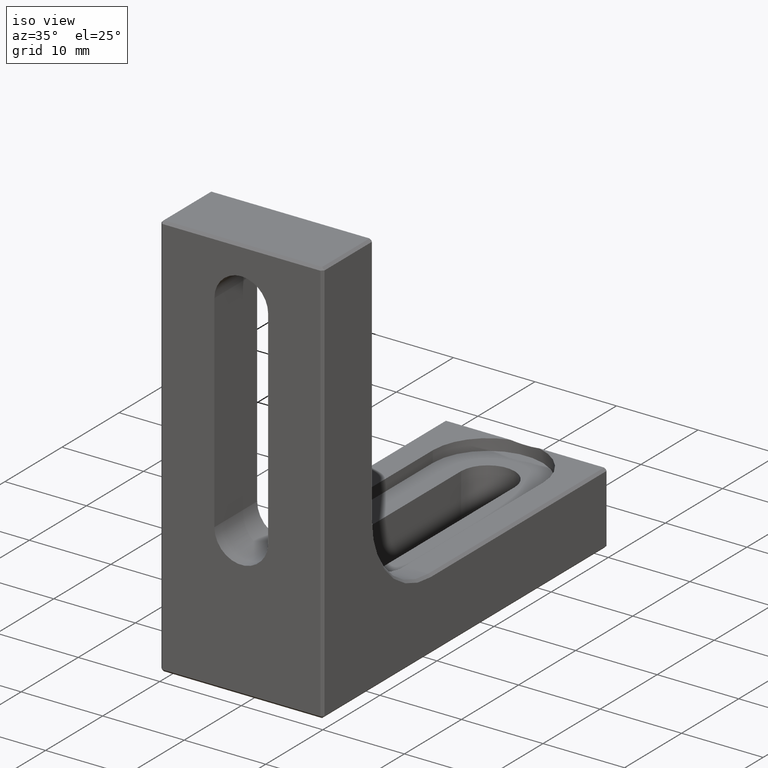
[diagram: clean part render]
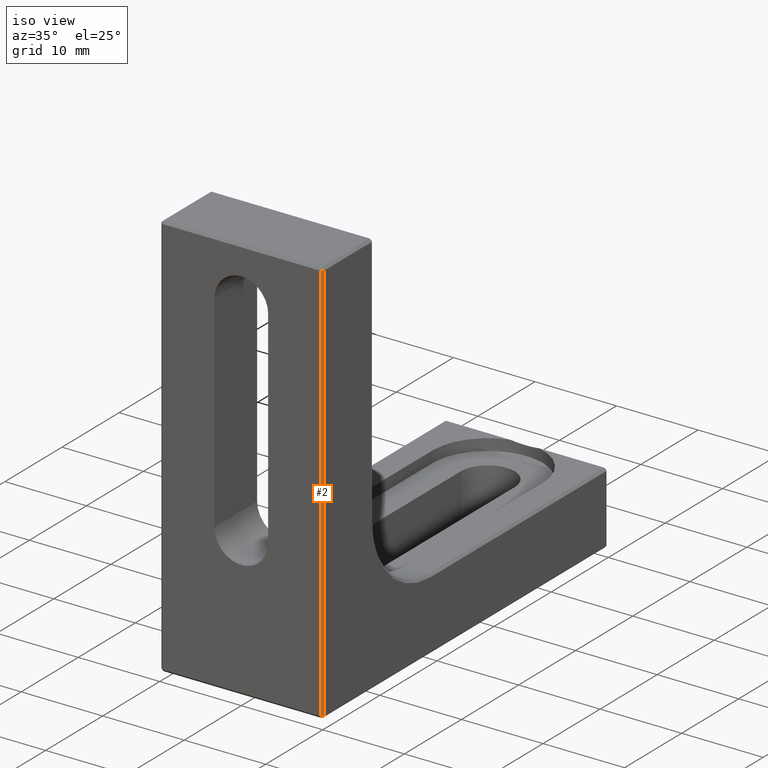
[diagram: same view with one face highlighted and labeled with its STEP entity id]
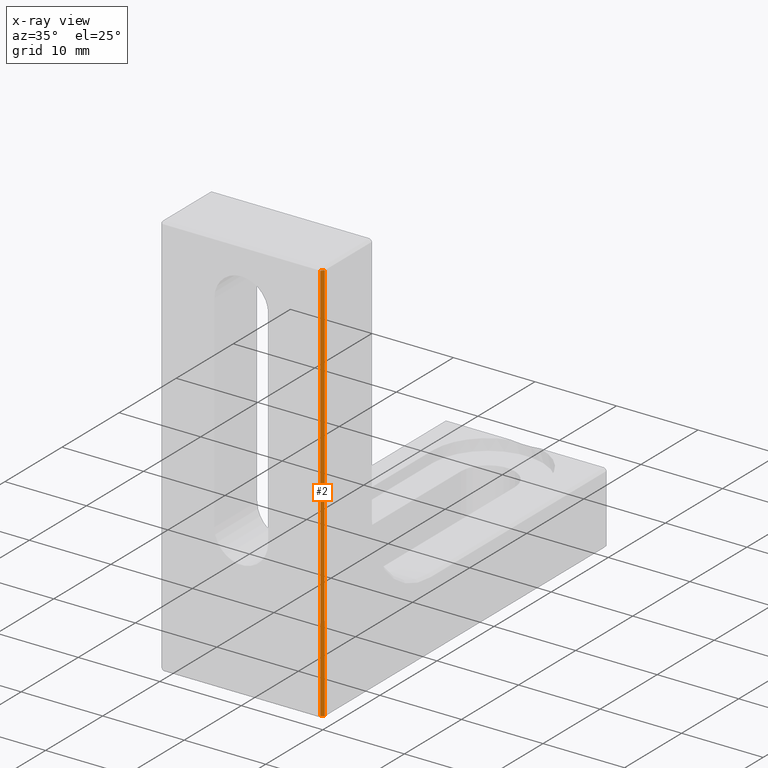
[diagram: x-ray of the same camera — body ghosted, the highlighted face saturated]
A machine part, iso view. The second image highlights one B-rep face of the part: STEP entity #2.
The next image is the same camera in x-ray: the body ghosted, the highlighted face saturated — about 0% of this face is hidden behind the body in this view.
In plain terms, the highlighted planar face has unit normal (0.7071, -0.7071, -0).
Its self-contained STEP definition (entity closure, byte-faithful):
#2 = ADVANCED_FACE ( 'NONE', ( #1227 ), #934, .T. ) ;
#43 = ORIENTED_EDGE ( 'NONE', *, *, #449, .F. ) ;
#126 = AXIS2_PLACEMENT_3D ( 'NONE', #1079, #1795, #1484 ) ;
#189 = VERTEX_POINT ( 'NONE', #1874 ) ;
#193 = CARTESIAN_POINT ( 'NONE',  ( 9.699999999999999289, -3.673940397442079220E-17, 0.3000000000000015987 ) ) ;
#323 = VECTOR ( 'NONE', #840, 1000.000000000000000 ) ;
#353 = EDGE_CURVE ( 'NONE', #355, #737, #1083, .T. ) ;
#355 = VERTEX_POINT ( 'NONE', #791 ) ;
#358 = DIRECTION ( 'NONE',  ( 0.000000000000000000, 1.224646799147353207E-16, -1.000000000000000000 ) ) ;
#449 = EDGE_CURVE ( 'NONE', #189, #702, #1440, .T. ) ;
#518 = ORIENTED_EDGE ( 'NONE', *, *, #1791, .F. ) ;
#630 = EDGE_LOOP ( 'NONE', ( #1480, #1140, #43, #518 ) ) ;
#657 = CARTESIAN_POINT ( 'NONE',  ( 9.699999999999999289, -6.086494591762345225E-15, 49.70000000000000284 ) ) ;
#702 = VERTEX_POINT ( 'NONE', #193 ) ;
#719 = CARTESIAN_POINT ( 'NONE',  ( 9.849999999999999645, 0.1500000000000007161, 0.3000000000000016542 ) ) ;
#737 = VERTEX_POINT ( 'NONE', #657 ) ;
#791 = CARTESIAN_POINT ( 'NONE',  ( 10.00000000000000000, 0.2999999999999956035, 49.70000000000000284 ) ) ;
#834 = EDGE_CURVE ( 'NONE', #702, #737, #1706, .T. ) ;
#840 = DIRECTION ( 'NONE',  ( 0.000000000000000000, -1.224646799147353207E-16, 1.000000000000000000 ) ) ;
#928 = CARTESIAN_POINT ( 'NONE',  ( 9.849999999999999645, 0.1499999999999943601, 49.70000000000000284 ) ) ;
#934 = PLANE ( 'NONE',  #126 ) ;
#972 = CARTESIAN_POINT ( 'NONE',  ( 9.699999999999999289, -6.123233995736766085E-15, 50.00000000000000000 ) ) ;
#993 = VECTOR ( 'NONE', #1507, 1000.000000000000114 ) ;
#1079 = CARTESIAN_POINT ( 'NONE',  ( 10.00000000000000000, 0.3000000000000016542, 3.673940397442079836E-17 ) ) ;
#1082 = CARTESIAN_POINT ( 'NONE',  ( 10.00000000000000000, 0.3000000000000016542, 3.673940397442079836E-17 ) ) ;
#1083 = LINE ( 'NONE', #928, #993 ) ;
#1101 = LINE ( 'NONE', #1082, #1529 ) ;
#1140 = ORIENTED_EDGE ( 'NONE', *, *, #834, .F. ) ;
#1227 = FACE_OUTER_BOUND ( 'NONE', #630, .T. ) ;
#1440 = LINE ( 'NONE', #719, #1734 ) ;
#1450 = DIRECTION ( 'NONE',  ( -0.7071067811865474617, -0.7071067811865474617, -2.755629954852431222E-16 ) ) ;
#1480 = ORIENTED_EDGE ( 'NONE', *, *, #353, .T. ) ;
#1484 = DIRECTION ( 'NONE',  ( 0.000000000000000000, -1.224646799147353207E-16, 1.000000000000000000 ) ) ;
#1507 = DIRECTION ( 'NONE',  ( -0.7071067811865474617, -0.7071067811865474617, -0.000000000000000000 ) ) ;
#1529 = VECTOR ( 'NONE', #358, 1000.000000000000000 ) ;
#1706 = LINE ( 'NONE', #972, #323 ) ;
#1734 = VECTOR ( 'NONE', #1450, 1000.000000000000114 ) ;
#1791 = EDGE_CURVE ( 'NONE', #355, #189, #1101, .T. ) ;
#1795 = DIRECTION ( 'NONE',  ( 0.7071067811865475727, -0.7071067811865475727, -8.659560562354932858E-17 ) ) ;
#1874 = CARTESIAN_POINT ( 'NONE',  ( 10.00000000000000000, 0.3000000000000015987, 0.3000000000000017097 ) ) ;